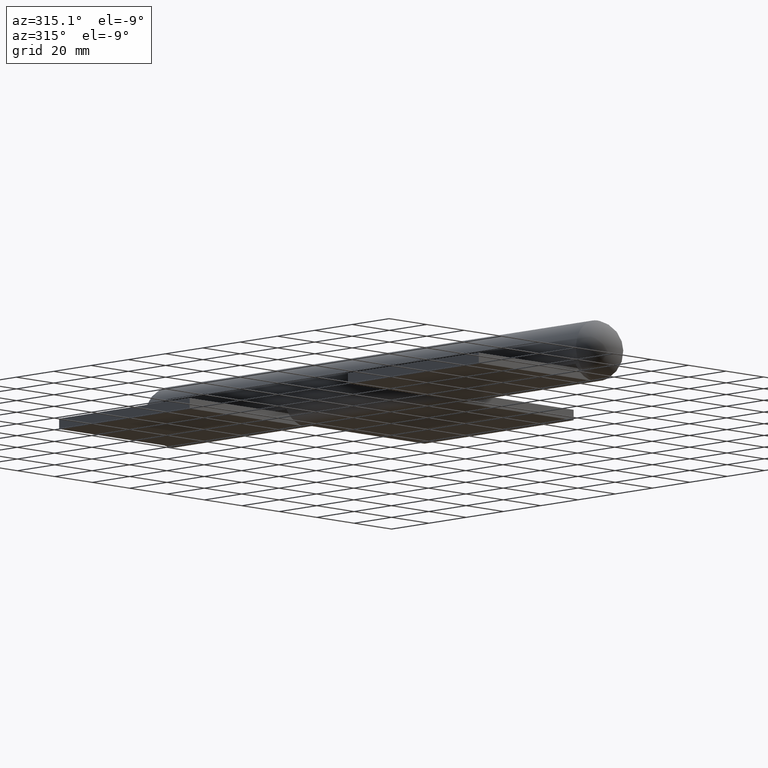
[diagram: clean part render]
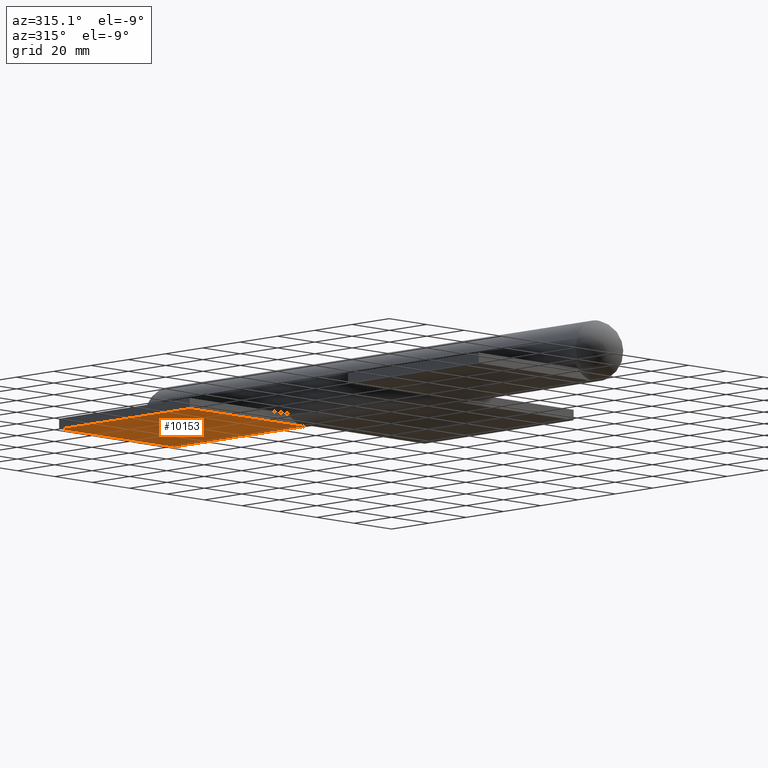
[diagram: same view with one face highlighted and labeled with its STEP entity id]
A machine part, auxiliary view. The second image highlights one B-rep face of the part: STEP entity #10153.
In plain terms, the highlighted planar face has unit normal (0, 0, 1).
Its self-contained STEP definition (entity closure, byte-faithful):
#379 = LINE ( 'NONE', #4355, #547 ) ;
#420 = DIRECTION ( 'NONE',  ( -0.000000000000000000, -1.000000000000000000, -0.000000000000000000 ) ) ;
#524 = EDGE_CURVE ( 'NONE', #8342, #2674, #9949, .T. ) ;
#547 = VECTOR ( 'NONE', #8517, 1000.000000000000000 ) ;
#935 = ORIENTED_EDGE ( 'NONE', *, *, #2148, .T. ) ;
#1137 = FACE_OUTER_BOUND ( 'NONE', #3306, .T. ) ;
#1707 = ORIENTED_EDGE ( 'NONE', *, *, #9097, .T. ) ;
#1736 = DIRECTION ( 'NONE',  ( -0.000000000000000000, -0.000000000000000000, 1.000000000000000000 ) ) ;
#2148 = EDGE_CURVE ( 'NONE', #5632, #12016, #6073, .T. ) ;
#2661 = ORIENTED_EDGE ( 'NONE', *, *, #4882, .F. ) ;
#2674 = VERTEX_POINT ( 'NONE', #8418 ) ;
#2974 = CARTESIAN_POINT ( 'NONE',  ( -11.50000000000000000, -35.00000000000000000, 61.49500000000000455 ) ) ;
#3233 = CARTESIAN_POINT ( 'NONE',  ( -11.49999999999999822, 35.00000000000000000, 2.112515728529185250E-15 ) ) ;
#3303 = DIRECTION ( 'NONE',  ( 0.000000000000000000, 0.000000000000000000, -1.000000000000000000 ) ) ;
#3306 = EDGE_LOOP ( 'NONE', ( #935, #2661, #4993, #1707 ) ) ;
#3418 = CARTESIAN_POINT ( 'NONE',  ( -11.50000000000000000, -35.00000000000000000, 61.49500000000000455 ) ) ;
#3424 = AXIS2_PLACEMENT_3D ( 'NONE', #10412, #7268, #3303 ) ;
#3820 = CARTESIAN_POINT ( 'NONE',  ( -11.50000000000000000, 35.00000000000000000, 61.49500000000000455 ) ) ;
#4355 = CARTESIAN_POINT ( 'NONE',  ( -11.50000000000000000, 35.00000000000000000, 61.49500000000000455 ) ) ;
#4706 = VECTOR ( 'NONE', #8294, 1000.000000000000000 ) ;
#4882 = EDGE_CURVE ( 'NONE', #2674, #12016, #379, .T. ) ;
#4993 = ORIENTED_EDGE ( 'NONE', *, *, #524, .F. ) ;
#5632 = VERTEX_POINT ( 'NONE', #8278 ) ;
#6073 = LINE ( 'NONE', #3418, #4706 ) ;
#6233 = VECTOR ( 'NONE', #420, 1000.000000000000000 ) ;
#7268 = DIRECTION ( 'NONE',  ( 1.000000000000000000, -0.000000000000000000, 0.000000000000000000 ) ) ;
#7507 = LINE ( 'NONE', #3233, #6233 ) ;
#8278 = CARTESIAN_POINT ( 'NONE',  ( -11.49999999999999822, -35.00000000000000000, 2.112515728529185250E-15 ) ) ;
#8294 = DIRECTION ( 'NONE',  ( -0.000000000000000000, -0.000000000000000000, 1.000000000000000000 ) ) ;
#8342 = VERTEX_POINT ( 'NONE', #12414 ) ;
#8418 = CARTESIAN_POINT ( 'NONE',  ( -11.50000000000000000, 35.00000000000000000, 61.49500000000000455 ) ) ;
#8517 = DIRECTION ( 'NONE',  ( -0.000000000000000000, -1.000000000000000000, -0.000000000000000000 ) ) ;
#9097 = EDGE_CURVE ( 'NONE', #8342, #5632, #7507, .T. ) ;
#9949 = LINE ( 'NONE', #3820, #11963 ) ;
#10153 = ADVANCED_FACE ( 'NONE', ( #1137 ), #12267, .F. ) ;
#10412 = CARTESIAN_POINT ( 'NONE',  ( -11.50000000000000000, 35.00000000000000000, 61.49500000000000455 ) ) ;
#11963 = VECTOR ( 'NONE', #1736, 1000.000000000000000 ) ;
#12016 = VERTEX_POINT ( 'NONE', #2974 ) ;
#12267 = PLANE ( 'NONE',  #3424 ) ;
#12414 = CARTESIAN_POINT ( 'NONE',  ( -11.49999999999999822, 35.00000000000000000, 2.112515728529185250E-15 ) ) ;